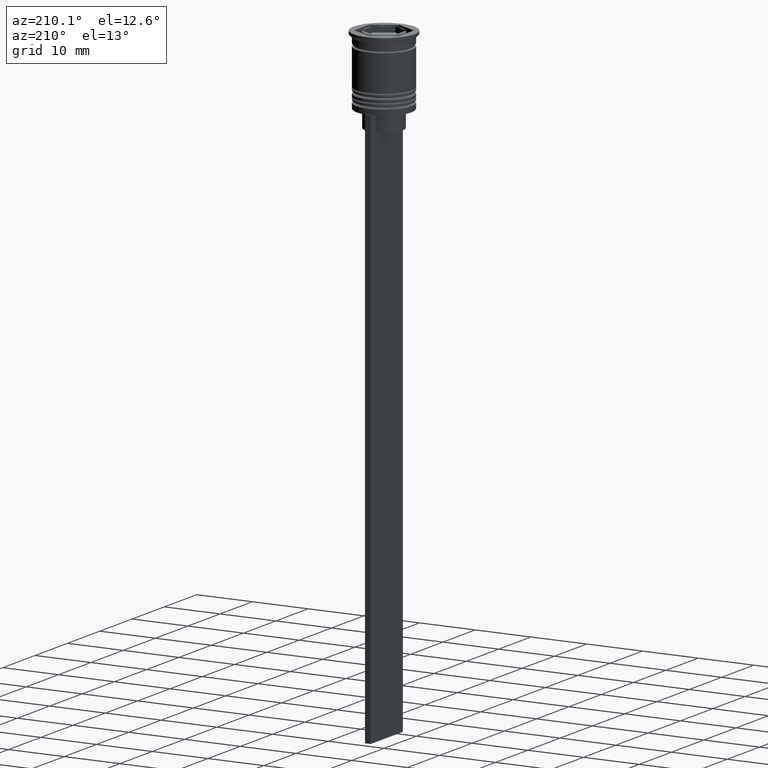
[diagram: clean part render]
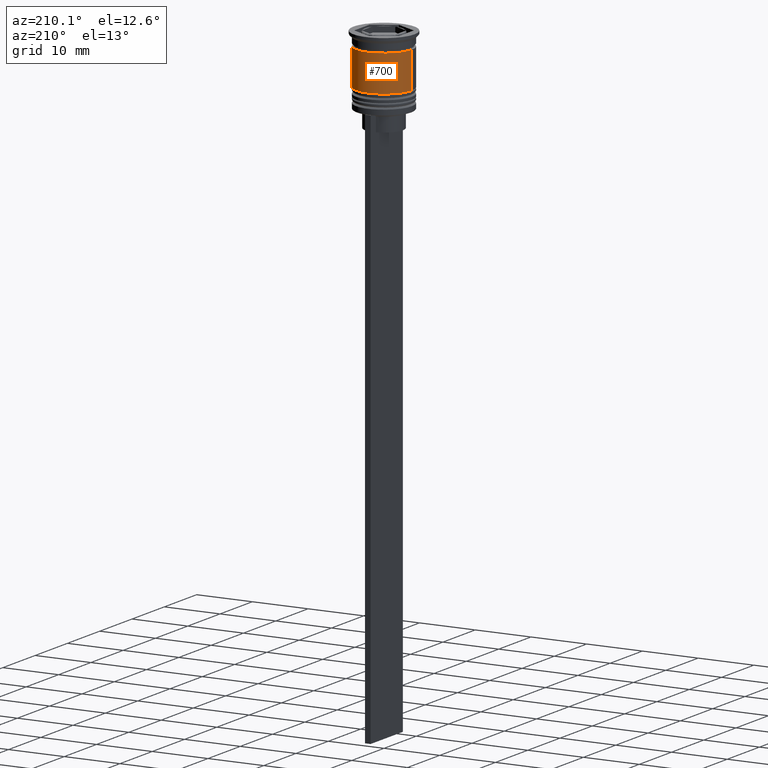
[diagram: same view with one face highlighted and labeled with its STEP entity id]
A machine part, auxiliary view. The second image highlights one B-rep face of the part: STEP entity #700.
In plain terms, the highlighted cylindrical surface (edge-blend (fillet) strip) has radius 5 mm, axis along (-0, -0, 1).
Its self-contained STEP definition (entity closure, byte-faithful):
#83 = VERTEX_POINT ( 'NONE', #2279 ) ;
#188 = AXIS2_PLACEMENT_3D ( 'NONE', #2158, #2550, #556 ) ;
#195 = VERTEX_POINT ( 'NONE', #1557 ) ;
#301 = DIRECTION ( 'NONE',  ( -0.000000000000000000, -0.000000000000000000, 1.000000000000000000 ) ) ;
#410 = CARTESIAN_POINT ( 'NONE',  ( 0.000000000000000000, 0.000000000000000000, -2.500000000000000000 ) ) ;
#439 = EDGE_LOOP ( 'NONE', ( #1521, #1873, #1263, #2374 ) ) ;
#535 = VERTEX_POINT ( 'NONE', #694 ) ;
#542 = EDGE_CURVE ( 'NONE', #535, #83, #1484, .T. ) ;
#556 = DIRECTION ( 'NONE',  ( 1.000000000000000000, 0.000000000000000000, 0.000000000000000000 ) ) ;
#651 = EDGE_CURVE ( 'NONE', #195, #83, #1222, .T. ) ;
#657 = CARTESIAN_POINT ( 'NONE',  ( 5.000000000000000888, 0.000000000000000000, -9.000000000000001776 ) ) ;
#694 = CARTESIAN_POINT ( 'NONE',  ( -5.000000000000000888, 6.123233995736767268E-16, -9.000000000000001776 ) ) ;
#700 = ADVANCED_FACE ( 'NONE', ( #2199 ), #1777, .T. ) ;
#722 = LINE ( 'NONE', #1285, #1731 ) ;
#1150 = CIRCLE ( 'NONE', #1477, 5.000000000000000888 ) ;
#1222 = CIRCLE ( 'NONE', #2179, 4.999999999999999112 ) ;
#1263 = ORIENTED_EDGE ( 'NONE', *, *, #651, .F. ) ;
#1285 = CARTESIAN_POINT ( 'NONE',  ( 5.000000000000000000, 0.000000000000000000, 0.000000000000000000 ) ) ;
#1311 = DIRECTION ( 'NONE',  ( -0.000000000000000000, -0.000000000000000000, 1.000000000000000000 ) ) ;
#1324 = DIRECTION ( 'NONE',  ( -0.000000000000000000, -0.000000000000000000, 1.000000000000000000 ) ) ;
#1384 = DIRECTION ( 'NONE',  ( 1.000000000000000000, 0.000000000000000000, 0.000000000000000000 ) ) ;
#1477 = AXIS2_PLACEMENT_3D ( 'NONE', #2342, #1311, #2108 ) ;
#1484 = LINE ( 'NONE', #2286, #2267 ) ;
#1521 = ORIENTED_EDGE ( 'NONE', *, *, #1789, .T. ) ;
#1538 = DIRECTION ( 'NONE',  ( -0.000000000000000000, -0.000000000000000000, 1.000000000000000000 ) ) ;
#1557 = CARTESIAN_POINT ( 'NONE',  ( 4.999999999999999112, 0.000000000000000000, -2.500000000000000000 ) ) ;
#1731 = VECTOR ( 'NONE', #1324, 1000.000000000000000 ) ;
#1777 = CYLINDRICAL_SURFACE ( 'NONE', #188, 5.000000000000000000 ) ;
#1789 = EDGE_CURVE ( 'NONE', #2283, #535, #1150, .T. ) ;
#1873 = ORIENTED_EDGE ( 'NONE', *, *, #542, .T. ) ;
#2065 = EDGE_CURVE ( 'NONE', #2283, #195, #722, .T. ) ;
#2108 = DIRECTION ( 'NONE',  ( 1.000000000000000000, 0.000000000000000000, 0.000000000000000000 ) ) ;
#2158 = CARTESIAN_POINT ( 'NONE',  ( 0.000000000000000000, 0.000000000000000000, 0.000000000000000000 ) ) ;
#2179 = AXIS2_PLACEMENT_3D ( 'NONE', #410, #1538, #1384 ) ;
#2199 = FACE_OUTER_BOUND ( 'NONE', #439, .T. ) ;
#2267 = VECTOR ( 'NONE', #301, 1000.000000000000000 ) ;
#2279 = CARTESIAN_POINT ( 'NONE',  ( -4.999999999999999112, 6.123233995736766282E-16, -2.500000000000000000 ) ) ;
#2283 = VERTEX_POINT ( 'NONE', #657 ) ;
#2286 = CARTESIAN_POINT ( 'NONE',  ( -5.000000000000000000, 6.123233995736766282E-16, 0.000000000000000000 ) ) ;
#2342 = CARTESIAN_POINT ( 'NONE',  ( 0.000000000000000000, 0.000000000000000000, -9.000000000000001776 ) ) ;
#2374 = ORIENTED_EDGE ( 'NONE', *, *, #2065, .F. ) ;
#2550 = DIRECTION ( 'NONE',  ( -0.000000000000000000, -0.000000000000000000, 1.000000000000000000 ) ) ;